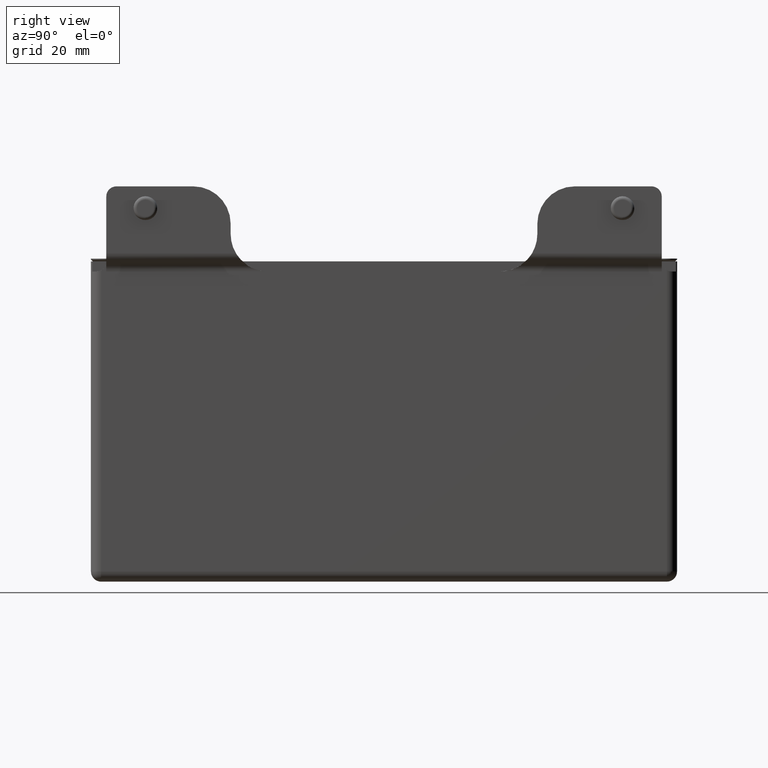
[diagram: clean part render]
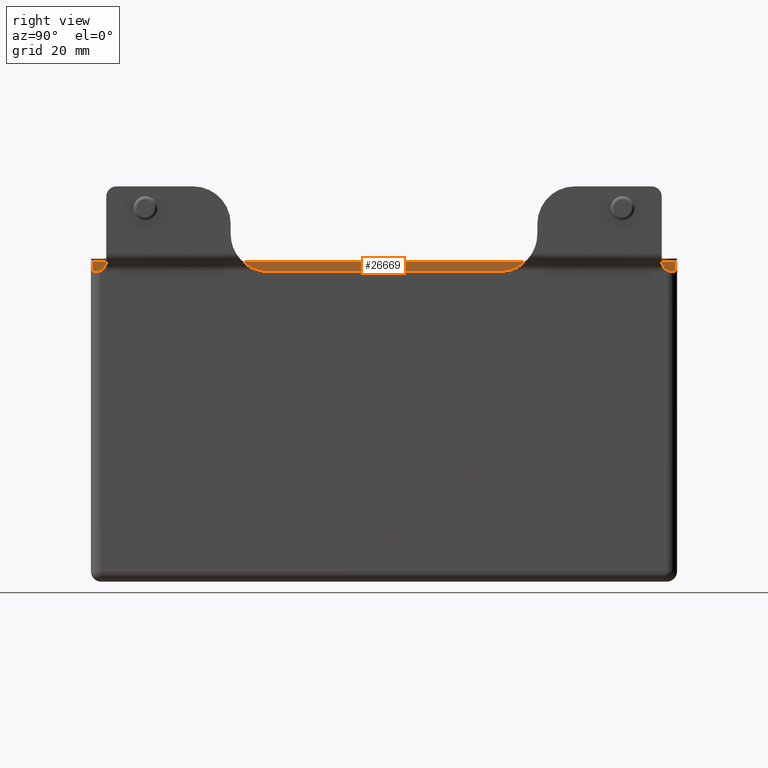
[diagram: same view with one face highlighted and labeled with its STEP entity id]
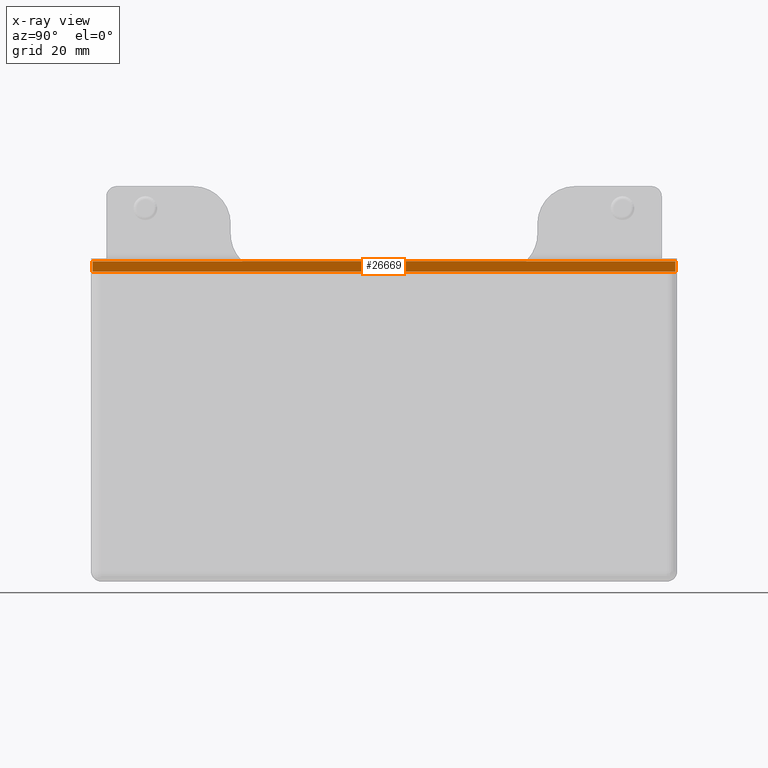
[diagram: x-ray of the same camera — body ghosted, the highlighted face saturated]
A machine part, right view. The second image highlights one B-rep face of the part: STEP entity #26669.
The next image is the same camera in x-ray: the body ghosted, the highlighted face saturated — about 0% of this face is hidden behind the body in this view.
In plain terms, the highlighted planar face has unit normal (-1, 0, 0).
Its self-contained STEP definition (entity closure, byte-faithful):
#952 = CARTESIAN_POINT ( 'NONE',  ( 21.99999999999999645, 86.00000000000000000, 3.000000000000000000 ) ) ;
#3029 = VERTEX_POINT ( 'NONE', #33416 ) ;
#3373 = ORIENTED_EDGE ( 'NONE', *, *, #4417, .T. ) ;
#3404 = DIRECTION ( 'NONE',  ( 0.000000000000000000, 0.000000000000000000, 1.000000000000000000 ) ) ;
#4199 = FACE_OUTER_BOUND ( 'NONE', #4454, .T. ) ;
#4417 = EDGE_CURVE ( 'NONE', #14572, #35699, #21769, .T. ) ;
#4454 = EDGE_LOOP ( 'NONE', ( #25085, #3373, #32895, #15641 ) ) ;
#7145 = CARTESIAN_POINT ( 'NONE',  ( 21.99999999999999645, 85.49999999999998579, 3.000000000000000000 ) ) ;
#7483 = AXIS2_PLACEMENT_3D ( 'NONE', #952, #17693, #3404 ) ;
#9057 = EDGE_CURVE ( 'NONE', #35699, #3029, #27386, .T. ) ;
#9060 = CARTESIAN_POINT ( 'NONE',  ( 21.99999999999999645, -85.49999999999998579, 0.000000000000000000 ) ) ;
#10454 = VECTOR ( 'NONE', #11284, 1000.000000000000000 ) ;
#11249 = EDGE_CURVE ( 'NONE', #14572, #25650, #29065, .T. ) ;
#11284 = DIRECTION ( 'NONE',  ( 0.000000000000000000, 0.000000000000000000, -1.000000000000000000 ) ) ;
#13542 = VECTOR ( 'NONE', #27621, 1000.000000000000000 ) ;
#14572 = VERTEX_POINT ( 'NONE', #18349 ) ;
#15641 = ORIENTED_EDGE ( 'NONE', *, *, #19706, .T. ) ;
#15876 = DIRECTION ( 'NONE',  ( -0.000000000000000000, 1.000000000000000000, -0.000000000000000000 ) ) ;
#16080 = DIRECTION ( 'NONE',  ( -0.000000000000000000, 1.000000000000000000, -0.000000000000000000 ) ) ;
#16999 = CARTESIAN_POINT ( 'NONE',  ( 21.99999999999999645, -85.49999999999998579, 3.000000000000000000 ) ) ;
#17693 = DIRECTION ( 'NONE',  ( -1.000000000000000000, 0.000000000000000000, 0.000000000000000000 ) ) ;
#17869 = LINE ( 'NONE', #30761, #13542 ) ;
#18349 = CARTESIAN_POINT ( 'NONE',  ( 21.99999999999999645, -85.49999999999998579, 3.000000000000000000 ) ) ;
#19706 = EDGE_CURVE ( 'NONE', #3029, #25650, #17869, .T. ) ;
#21769 = LINE ( 'NONE', #16999, #10454 ) ;
#22928 = PLANE ( 'NONE',  #7483 ) ;
#25085 = ORIENTED_EDGE ( 'NONE', *, *, #11249, .F. ) ;
#25650 = VERTEX_POINT ( 'NONE', #7145 ) ;
#26669 = ADVANCED_FACE ( 'NONE', ( #4199 ), #22928, .F. ) ;
#27386 = LINE ( 'NONE', #35354, #28709 ) ;
#27621 = DIRECTION ( 'NONE',  ( -0.000000000000000000, -0.000000000000000000, 1.000000000000000000 ) ) ;
#28709 = VECTOR ( 'NONE', #15876, 1000.000000000000000 ) ;
#29065 = LINE ( 'NONE', #32504, #33829 ) ;
#30761 = CARTESIAN_POINT ( 'NONE',  ( 21.99999999999999645, 85.49999999999998579, 3.000000000000000000 ) ) ;
#32504 = CARTESIAN_POINT ( 'NONE',  ( 21.99999999999999645, 86.00000000000000000, 3.000000000000000000 ) ) ;
#32895 = ORIENTED_EDGE ( 'NONE', *, *, #9057, .T. ) ;
#33416 = CARTESIAN_POINT ( 'NONE',  ( 21.99999999999999645, 85.49999999999998579, 0.000000000000000000 ) ) ;
#33829 = VECTOR ( 'NONE', #16080, 1000.000000000000000 ) ;
#35354 = CARTESIAN_POINT ( 'NONE',  ( 21.99999999999999645, 86.00000000000000000, 0.000000000000000000 ) ) ;
#35699 = VERTEX_POINT ( 'NONE', #9060 ) ;